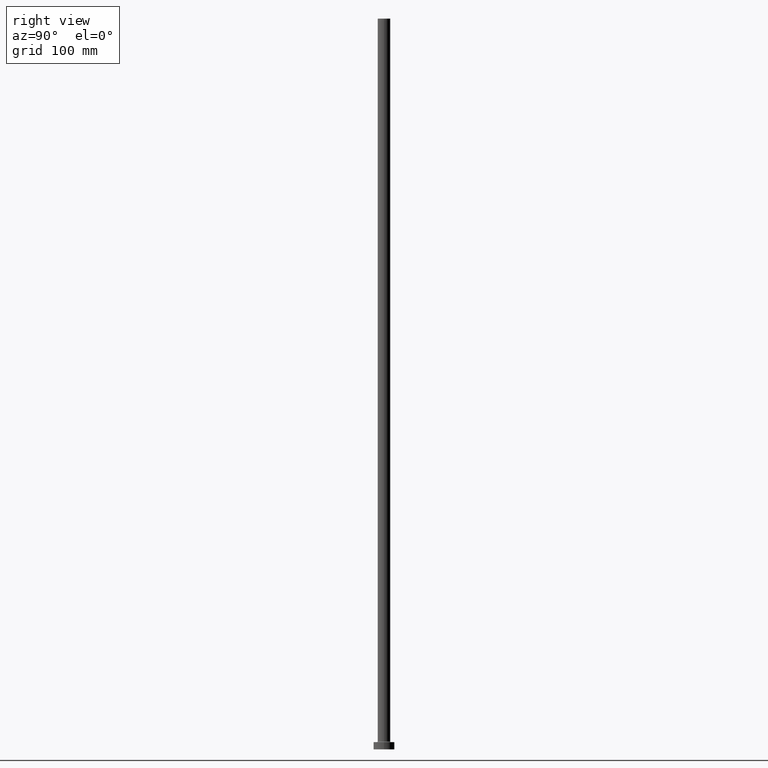
[diagram: clean part render]
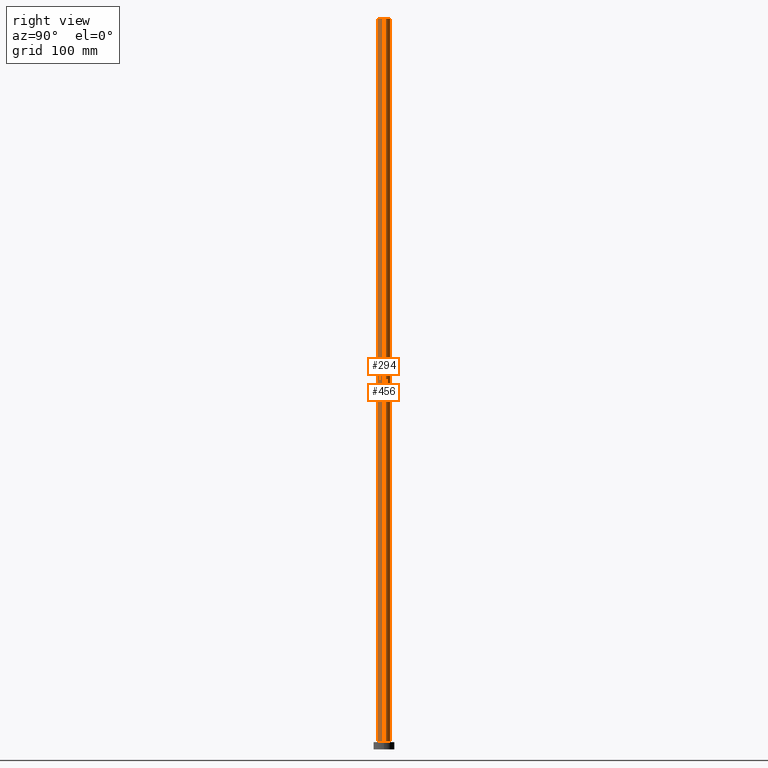
[diagram: same view with one multi-face feature highlighted, each face labeled with its STEP entity id]
A machine part, right view. The highlighted faces form ONE feature: a constant-radius fillet chain: 2 tangent blend faces with common blend radius 6 mm. The faces share edges in the B-rep.
Their STEP definitions:
[1] entity #294 (Cylinder):
#28 = CARTESIAN_POINT ( 'NONE',  ( 6.000000000000000888, 7.347880794884120722E-16, 700.0000000000000000 ) ) ;
#34 = LINE ( 'NONE', #28, #425 ) ;
#36 = CARTESIAN_POINT ( 'NONE',  ( 0.000000000000000000, 0.000000000000000000, 700.0000000000000000 ) ) ;
#41 = CIRCLE ( 'NONE', #57, 6.000000000000000888 ) ;
#51 = ORIENTED_EDGE ( 'NONE', *, *, #411, .T. ) ;
#57 = AXIS2_PLACEMENT_3D ( 'NONE', #343, #139, #204 ) ;
#63 = AXIS2_PLACEMENT_3D ( 'NONE', #36, #189, #426 ) ;
#66 = CARTESIAN_POINT ( 'NONE',  ( -6.000000000000000888, 0.000000000000000000, 700.0000000000000000 ) ) ;
#70 = DIRECTION ( 'NONE',  ( -0.000000000000000000, -0.000000000000000000, -1.000000000000000000 ) ) ;
#78 = EDGE_LOOP ( 'NONE', ( #95, #366, #310, #51 ) ) ;
#80 = VERTEX_POINT ( 'NONE', #336 ) ;
#95 = ORIENTED_EDGE ( 'NONE', *, *, #163, .F. ) ;
#116 = CARTESIAN_POINT ( 'NONE',  ( -6.000000000000000888, 0.000000000000000000, 7.700000000000040146 ) ) ;
#122 = CYLINDRICAL_SURFACE ( 'NONE', #63, 6.000000000000000888 ) ;
#138 = EDGE_CURVE ( 'NONE', #225, #80, #41, .T. ) ;
#139 = DIRECTION ( 'NONE',  ( 0.000000000000000000, 0.000000000000000000, 1.000000000000000000 ) ) ;
#145 = VERTEX_POINT ( 'NONE', #352 ) ;
#163 = EDGE_CURVE ( 'NONE', #80, #145, #34, .T. ) ;
#179 = FACE_OUTER_BOUND ( 'NONE', #78, .T. ) ;
#187 = CIRCLE ( 'NONE', #342, 6.000000000000000888 ) ;
#189 = DIRECTION ( 'NONE',  ( -0.000000000000000000, -0.000000000000000000, -1.000000000000000000 ) ) ;
#204 = DIRECTION ( 'NONE',  ( 1.000000000000000000, 0.000000000000000000, 0.000000000000000000 ) ) ;
#225 = VERTEX_POINT ( 'NONE', #66 ) ;
#230 = DIRECTION ( 'NONE',  ( 1.000000000000000000, 0.000000000000000000, 0.000000000000000000 ) ) ;
#253 = VERTEX_POINT ( 'NONE', #116 ) ;
#266 = CARTESIAN_POINT ( 'NONE',  ( 0.000000000000000000, 0.000000000000000000, 7.700000000000040146 ) ) ;
#294 = ADVANCED_FACE ( 'NONE', ( #179 ), #122, .T. ) ;
#310 = ORIENTED_EDGE ( 'NONE', *, *, #416, .T. ) ;
#336 = CARTESIAN_POINT ( 'NONE',  ( 6.000000000000000888, 7.347880794884120722E-16, 700.0000000000000000 ) ) ;
#342 = AXIS2_PLACEMENT_3D ( 'NONE', #266, #409, #230 ) ;
#343 = CARTESIAN_POINT ( 'NONE',  ( 0.000000000000000000, 0.000000000000000000, 700.0000000000000000 ) ) ;
#346 = CARTESIAN_POINT ( 'NONE',  ( -6.000000000000000888, 0.000000000000000000, 700.0000000000000000 ) ) ;
#352 = CARTESIAN_POINT ( 'NONE',  ( 6.000000000000000888, 7.347880794884120722E-16, 7.700000000000040146 ) ) ;
#366 = ORIENTED_EDGE ( 'NONE', *, *, #138, .F. ) ;
#377 = LINE ( 'NONE', #346, #414 ) ;
#409 = DIRECTION ( 'NONE',  ( 0.000000000000000000, 0.000000000000000000, 1.000000000000000000 ) ) ;
#411 = EDGE_CURVE ( 'NONE', #253, #145, #187, .T. ) ;
#414 = VECTOR ( 'NONE', #448, 1000.000000000000000 ) ;
#416 = EDGE_CURVE ( 'NONE', #225, #253, #377, .T. ) ;
#425 = VECTOR ( 'NONE', #70, 1000.000000000000000 ) ;
#426 = DIRECTION ( 'NONE',  ( -1.000000000000000000, 0.000000000000000000, 0.000000000000000000 ) ) ;
#448 = DIRECTION ( 'NONE',  ( -0.000000000000000000, -0.000000000000000000, -1.000000000000000000 ) ) ;
[2] entity #456 (Cylinder):
#27 = CYLINDRICAL_SURFACE ( 'NONE', #193, 6.000000000000000888 ) ;
#28 = CARTESIAN_POINT ( 'NONE',  ( 6.000000000000000888, 7.347880794884120722E-16, 700.0000000000000000 ) ) ;
#34 = LINE ( 'NONE', #28, #425 ) ;
#54 = EDGE_CURVE ( 'NONE', #145, #253, #360, .T. ) ;
#66 = CARTESIAN_POINT ( 'NONE',  ( -6.000000000000000888, 0.000000000000000000, 700.0000000000000000 ) ) ;
#70 = DIRECTION ( 'NONE',  ( -0.000000000000000000, -0.000000000000000000, -1.000000000000000000 ) ) ;
#80 = VERTEX_POINT ( 'NONE', #336 ) ;
#92 = DIRECTION ( 'NONE',  ( 1.000000000000000000, 0.000000000000000000, 0.000000000000000000 ) ) ;
#98 = CARTESIAN_POINT ( 'NONE',  ( 0.000000000000000000, 0.000000000000000000, 7.700000000000040146 ) ) ;
#108 = DIRECTION ( 'NONE',  ( 0.000000000000000000, 0.000000000000000000, 1.000000000000000000 ) ) ;
#116 = CARTESIAN_POINT ( 'NONE',  ( -6.000000000000000888, 0.000000000000000000, 7.700000000000040146 ) ) ;
#145 = VERTEX_POINT ( 'NONE', #352 ) ;
#163 = EDGE_CURVE ( 'NONE', #80, #145, #34, .T. ) ;
#188 = ORIENTED_EDGE ( 'NONE', *, *, #54, .T. ) ;
#193 = AXIS2_PLACEMENT_3D ( 'NONE', #238, #201, #420 ) ;
#196 = EDGE_CURVE ( 'NONE', #80, #225, #437, .T. ) ;
#201 = DIRECTION ( 'NONE',  ( -0.000000000000000000, -0.000000000000000000, -1.000000000000000000 ) ) ;
#210 = EDGE_LOOP ( 'NONE', ( #369, #406, #188, #326 ) ) ;
#225 = VERTEX_POINT ( 'NONE', #66 ) ;
#232 = FACE_OUTER_BOUND ( 'NONE', #210, .T. ) ;
#234 = AXIS2_PLACEMENT_3D ( 'NONE', #304, #108, #276 ) ;
#238 = CARTESIAN_POINT ( 'NONE',  ( 0.000000000000000000, 0.000000000000000000, 700.0000000000000000 ) ) ;
#253 = VERTEX_POINT ( 'NONE', #116 ) ;
#276 = DIRECTION ( 'NONE',  ( 1.000000000000000000, 0.000000000000000000, 0.000000000000000000 ) ) ;
#304 = CARTESIAN_POINT ( 'NONE',  ( 0.000000000000000000, 0.000000000000000000, 700.0000000000000000 ) ) ;
#326 = ORIENTED_EDGE ( 'NONE', *, *, #416, .F. ) ;
#330 = DIRECTION ( 'NONE',  ( 0.000000000000000000, 0.000000000000000000, 1.000000000000000000 ) ) ;
#336 = CARTESIAN_POINT ( 'NONE',  ( 6.000000000000000888, 7.347880794884120722E-16, 700.0000000000000000 ) ) ;
#346 = CARTESIAN_POINT ( 'NONE',  ( -6.000000000000000888, 0.000000000000000000, 700.0000000000000000 ) ) ;
#352 = CARTESIAN_POINT ( 'NONE',  ( 6.000000000000000888, 7.347880794884120722E-16, 7.700000000000040146 ) ) ;
#360 = CIRCLE ( 'NONE', #372, 6.000000000000000888 ) ;
#369 = ORIENTED_EDGE ( 'NONE', *, *, #196, .F. ) ;
#372 = AXIS2_PLACEMENT_3D ( 'NONE', #98, #330, #92 ) ;
#377 = LINE ( 'NONE', #346, #414 ) ;
#406 = ORIENTED_EDGE ( 'NONE', *, *, #163, .T. ) ;
#414 = VECTOR ( 'NONE', #448, 1000.000000000000000 ) ;
#416 = EDGE_CURVE ( 'NONE', #225, #253, #377, .T. ) ;
#420 = DIRECTION ( 'NONE',  ( -1.000000000000000000, 0.000000000000000000, 0.000000000000000000 ) ) ;
#425 = VECTOR ( 'NONE', #70, 1000.000000000000000 ) ;
#437 = CIRCLE ( 'NONE', #234, 6.000000000000000888 ) ;
#448 = DIRECTION ( 'NONE',  ( -0.000000000000000000, -0.000000000000000000, -1.000000000000000000 ) ) ;
#456 = ADVANCED_FACE ( 'NONE', ( #232 ), #27, .T. ) ;